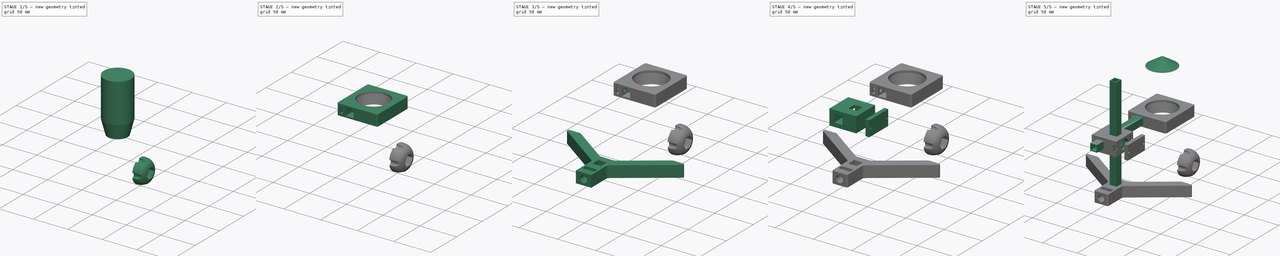
[diagram: build sequence overview — one tinted view per stage of 5, left to right]
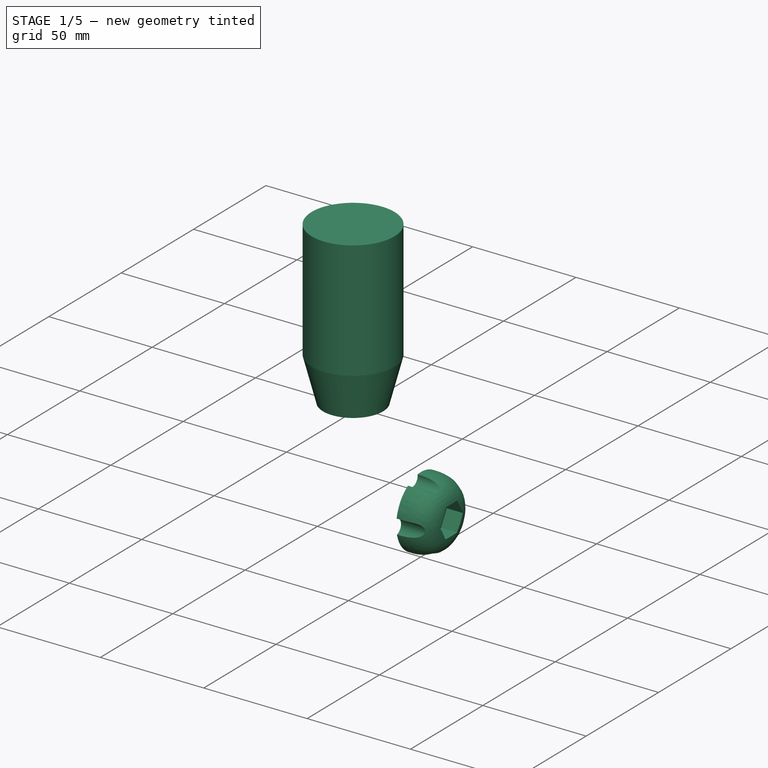
[diagram: stage 1 of 5 — iso view after this stage's code; geometry added in this stage tinted green]
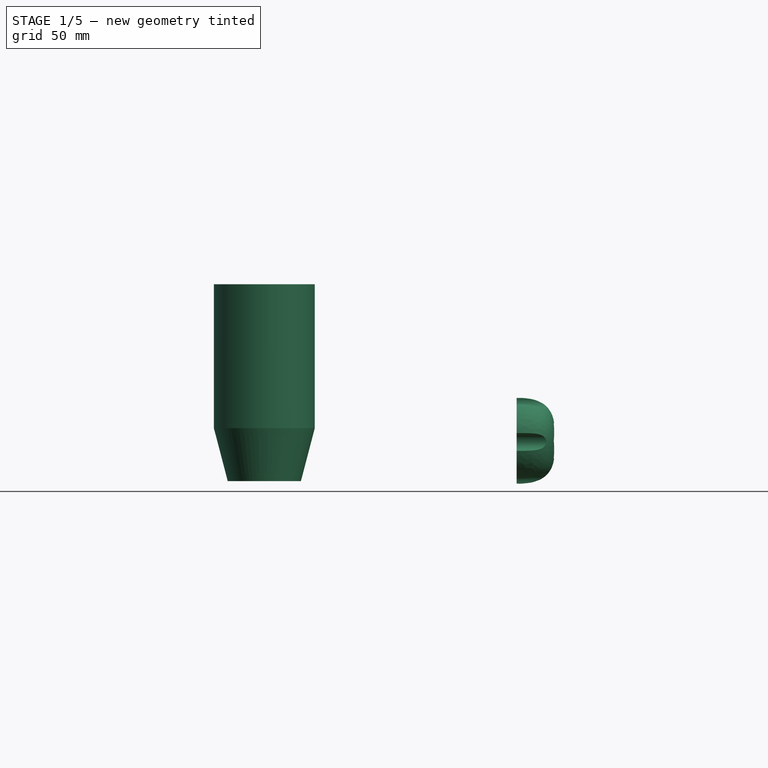
[diagram: stage 1 of 5 — front view after this stage's code; geometry added in this stage tinted green]
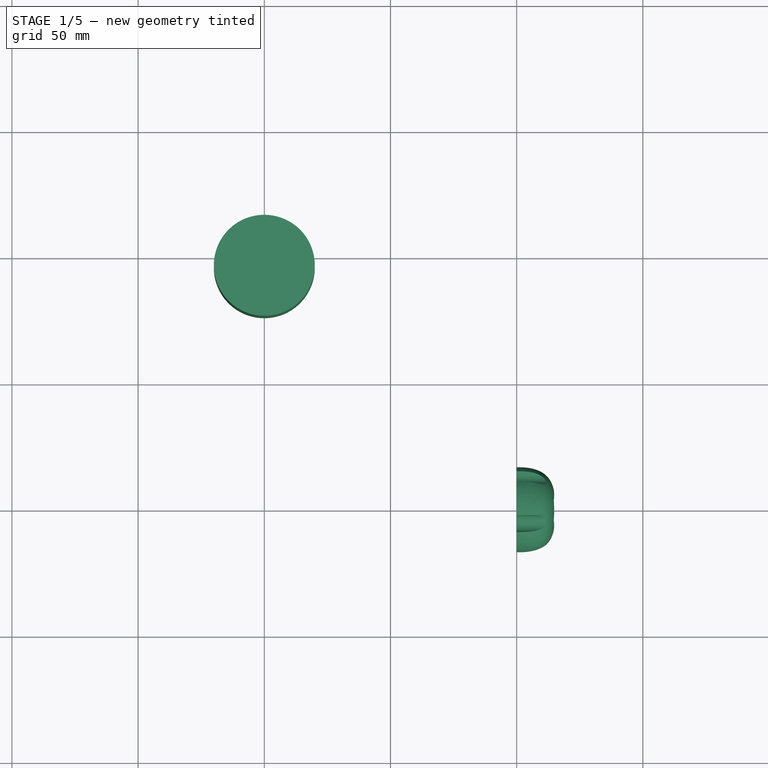
[diagram: stage 1 of 5 — top view after this stage's code; geometry added in this stage tinted green]
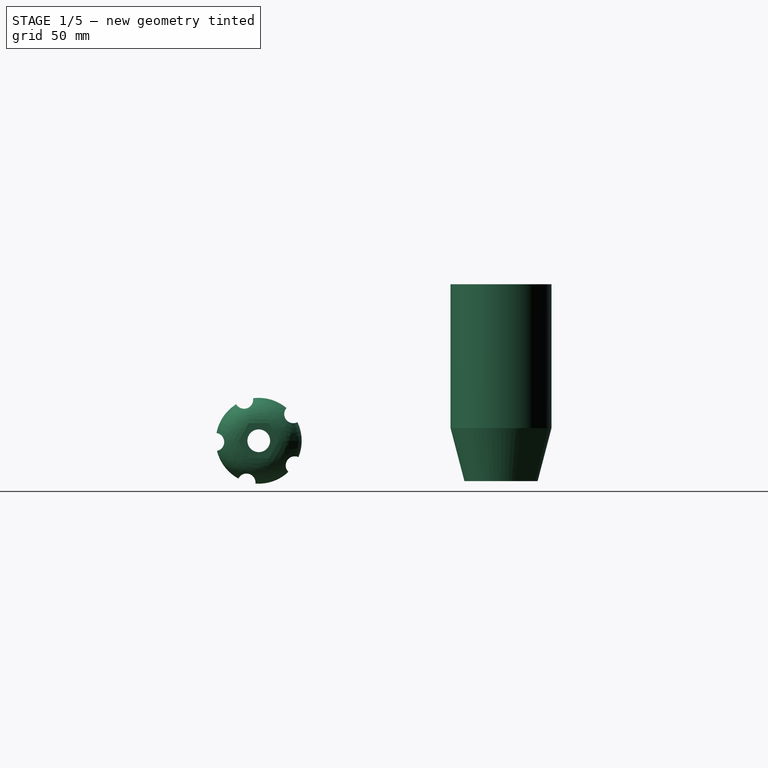
[diagram: stage 1 of 5 — right view after this stage's code; geometry added in this stage tinted green]
FCSTD DOCUMENT  (FreeCAD 0.14R3691 (Git))
Label: Soporte_Micro
License: CC-BY 3.0
LicenseURL: http://creativecommons.org/licenses/by/3.0/
objects: Sketcher::SketchObject×32, PartDesign::Pocket×16, PartDesign::Pad×7, App::DocumentObjectGroup×6, Part::Loft×5, PartDesign::Fillet×5, Part::Cut×2, Part::MultiFuse×1, Part::Offset×1, Part::Fillet×1, Part::FeaturePython×1
note: 94 computed .brp shape members not serialized (recipe doc carries the construction recipe); baked Part::Feature solids carry a one-line shape summary decoded from their .brp

FEATURE [Sketcher::SketchObject] Sketch  label="Campana_Inferior"
  sketch-geometry (1):
    g0: Circle CenterX=0 CenterY=0 CenterZ=0 NormalX=0 NormalY=0 NormalZ=1 Radius=11.5
  constraints (2):
    c: Radius(g0) = 11.5
    c: Coincident(g0,g-1)
FEATURE [Sketcher::SketchObject] Sketch001  label="Campana_Superior"
  Placement = pos=(0,0,19) rot=(0,0,1;0rad)
  sketch-geometry (1):
    g0: Circle CenterX=0 CenterY=0 CenterZ=0 NormalX=0 NormalY=0 NormalZ=1 Radius=14.5
  constraints (2):
    c: Radius(g0) = 14.5
    c: Coincident(g0,g-1)
FEATURE [Part::Loft] Loft  label="Campana_Camara"
  Closed = false
  Placement = pos=(0,96,-25) rot=(0,0,1;0rad)
  Ruled = false
  Sections = -> [Sketch,Sketch001]
  Solid = false
FEATURE [Sketcher::SketchObject] Sketch002  label="Cuerpo inferior"
  Placement = pos=(0,0,19) rot=(0,0,1;0rad)
  sketch-geometry (1):
    g0: Circle CenterX=0 CenterY=0 CenterZ=0 NormalX=0 NormalY=0 NormalZ=1 Radius=14.5
  constraints (2):
    c: Radius(g0) = 14.5
    c: Coincident(g0,g-1)
FEATURE [Sketcher::SketchObject] Sketch003  label="Cuerpo_Medio_001"
  Placement = pos=(0,0,40) rot=(0,0,1;0rad)
  sketch-geometry (1):
    g0: Circle CenterX=0 CenterY=0 CenterZ=0 NormalX=0 NormalY=0 NormalZ=1 Radius=20
  constraints (2):
    c: Radius(g0) = 20
    c: Coincident(g0,g-1)
FEATURE [Sketcher::SketchObject] Sketch004  label="Cuerpo_Medio_002"
  Placement = pos=(0,0,97) rot=(0,0,1;0rad)
  sketch-geometry (1):
    g0: Circle CenterX=0 CenterY=0 CenterZ=0 NormalX=0 NormalY=0 NormalZ=1 Radius=20
  constraints (2):
    c: Radius(g0) = 20
    c: Coincident(g0,g-1)
FEATURE [Sketcher::SketchObject] Sketch005  label="Cuerpo_Final"
  Placement = pos=(0,0,108) rot=(0,0,1;0rad)
  sketch-geometry (1):
    g0: Circle CenterX=0 CenterY=0 CenterZ=0 NormalX=0 NormalY=0 NormalZ=1 Radius=3
  constraints (2):
    c: Radius(g0) = 3
    c: Coincident(g0,g-1)
FEATURE [Part::Loft] Loft001
  Closed = false
  Placement = pos=(0,96,-25) rot=(0,0,1;0rad)
  Ruled = false
  Sections = -> [Sketch002,Sketch003]
  Solid = true
FEATURE [Part::Loft] Loft002
  Closed = false
  Placement = pos=(0,96,-25) rot=(0,0,1;0rad)
  Ruled = true
  Sections = -> [Sketch003,Sketch004]
  Solid = true
FEATURE [App::DocumentObjectGroup] Grupo005  label="Clip_camara"
  Group = -> [Pad005,Fillet005,Pocket012,Pocket013,Pocket014]
FEATURE [Sketcher::SketchObject] Sketch017011  label="Base_Inferior_Pomo"
  Placement = pos=(100,0,0) rot=(0.57735,0.57735,0.57735;2.0944rad)
  sketch-geometry (1):
    g0: Circle CenterX=0 CenterY=10 CenterZ=0 NormalX=0 NormalY=0 NormalZ=1 Radius=17
  constraints (3):
    c: PointOnObject(g0,g-2)
    c: DistanceY(g-1,g0) = 10
    c: Radius(g0) = 17
FEATURE [Sketcher::SketchObject] Sketch017012  label="Base_Intermedia_Pomo"
  Placement = pos=(110,0,0) rot=(0.57735,0.57735,0.57735;2.0944rad)
  sketch-geometry (1):
    g0: Circle CenterX=0 CenterY=10 CenterZ=0 NormalX=0 NormalY=0 NormalZ=1 Radius=15
  constraints (3):
    c: PointOnObject(g0,g-2)
    c: DistanceY(g-1,g0) = 10
    c: Radius(g0) = 15
FEATURE [Sketcher::SketchObject] Sketch017013  label="Base_superior_Pomo"
  Placement = pos=(115,0,0) rot=(0.57735,0.57735,0.57735;2.0944rad)
  sketch-geometry (1):
    g0: Circle CenterX=0 CenterY=10 CenterZ=0 NormalX=0 NormalY=0 NormalZ=1 Radius=5
  constraints (3):
    c: PointOnObject(g0,g-2)
    c: DistanceY(g-1,g0) = 10
    c: Radius(g0) = 5
FEATURE [Part::Loft] Loft004
  Closed = false
  Ruled = false
  Sections = -> [Sketch017011,Sketch017012,Sketch017013]
  Solid = true
FEATURE [Sketcher::SketchObject] Sketch017014
  Placement = pos=(95,0,0) rot=(0.57735,0.57735,0.57735;2.0944rad)
  sketch-geometry (1):
    g0: Circle CenterX=-17.2847 CenterY=9.50247 CenterZ=0 NormalX=0 NormalY=0 NormalZ=1 Radius=3.5932
FEATURE [PartDesign::Pad] Pad006
  Length = 40
  Length2 = 600
  Placement = pos=(95,0,0) rot=(0.57735,0.57735,0.57735;2.0944rad)
  Sketch = -> Sketch017014
  Type = 0
FEATURE [Part::FeaturePython] Array  # Draft array (typed FeaturePython)
  Angle = 360
  ArrayType = 1
  Axis = (1,0,0)
  Base = -> Pad006
  Center = (0,0,10)
  IntervalX = (1,0,0)
  IntervalY = (0,1,0)
  IntervalZ = (0,0,1)
  NumberPolar = 5
  NumberX = 1
  NumberY = 1
  NumberZ = 7
FEATURE [Part::Cut] Cut001
  Base = -> Loft004
  Tool = -> Array
FEATURE [Sketcher::SketchObject] Sketch017015
  Placement = pos=(115,0,0) rot=(0.57735,0.57735,0.57735;2.0944rad)
  Support = -> Cut001 [Face2]
  sketch-geometry (6):
    g0: LineSegment StartX=-4.02495 StartY=17 StartZ=0 EndX=4.02495 EndY=17 EndZ=0
    g1: LineSegment StartX=4.02495 StartY=17 StartZ=0 EndX=8 EndY=10 EndZ=0
    g2: LineSegment StartX=8 StartY=10 StartZ=0 EndX=4.02495 EndY=3 EndZ=0
    g3: LineSegment StartX=4.02495 StartY=3 StartZ=0 EndX=-4.02495 EndY=3 EndZ=0
    g4: LineSegment StartX=-4.02495 StartY=3 StartZ=0 EndX=-8 EndY=10 EndZ=0
    g5: LineSegment StartX=-8 StartY=10 StartZ=0 EndX=-4.02495 EndY=17 EndZ=0
  constraints (17):
    c: Coincident(g0,g1)
    c: Coincident(g1,g2)
    c: Coincident(g2,g3)
    c: Coincident(g3,g4)
    c: Coincident(g4,g5)
    c: Coincident(g5,g0)
    c: Equal(g0,g5)
    c: Equal(g5,g4)
    c: Equal(g4,g3)
    c: Equal(g3,g2)
    c: Equal(g2,g1)
    c: DistanceY(g0,g3) = -14
    c: Symmetric(g4,g1,g-2)
    c: Horizontal(g3)
    c: Horizontal(g0)
    c: DistanceY(g-1,g2) = 3
    c: DistanceX(g4,g1) = 16
FEATURE [PartDesign::Pocket] Pocket015
  Length = 8
  Sketch = -> Sketch017015
  Type = 0
FEATURE [Sketcher::SketchObject] Sketch017016
  Placement = pos=(107,0,0) rot=(0.57735,0.57735,0.57735;2.0944rad)
  Support = -> Pocket015 [Face19]
  sketch-geometry (1):
    g0: Circle CenterX=0 CenterY=10 CenterZ=0 NormalX=0 NormalY=0 NormalZ=1 Radius=4.5
  constraints (3):
    c: PointOnObject(g0,g-2)
    c: DistanceY(g-1,g0) = 10
    c: Radius(g0) = 4.5
FEATURE [PartDesign::Pocket] Pocket016
  Length = 8
  Sketch = -> Sketch017016
  Type = 0
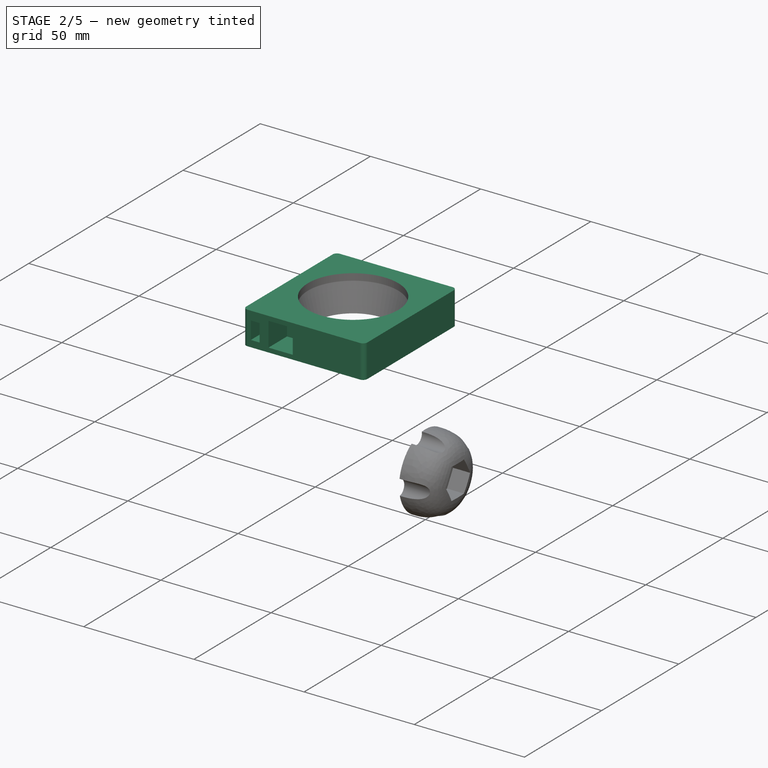
[diagram: stage 2 of 5 — iso view after this stage's code; geometry added in this stage tinted green]
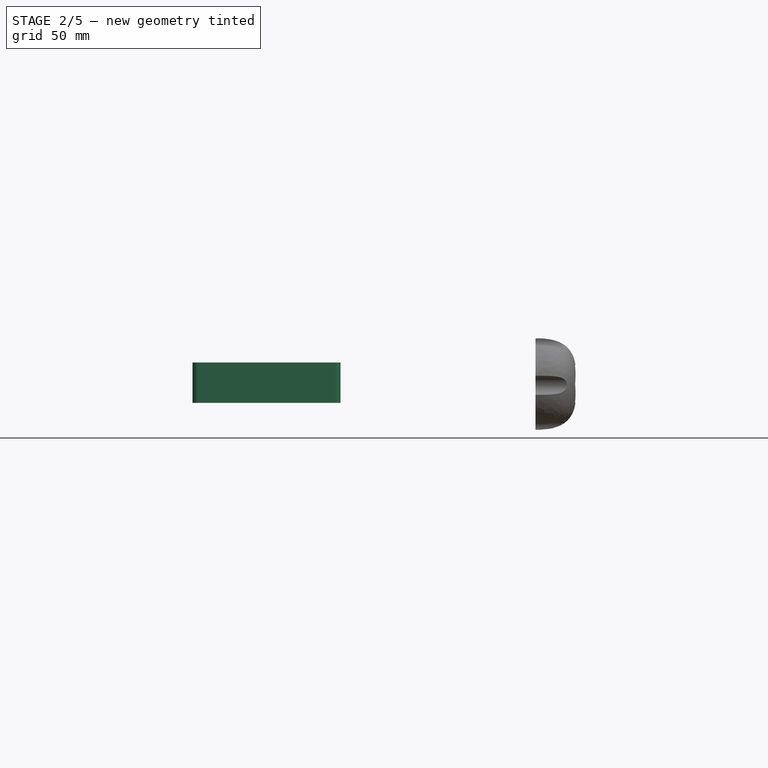
[diagram: stage 2 of 5 — front view after this stage's code; geometry added in this stage tinted green]
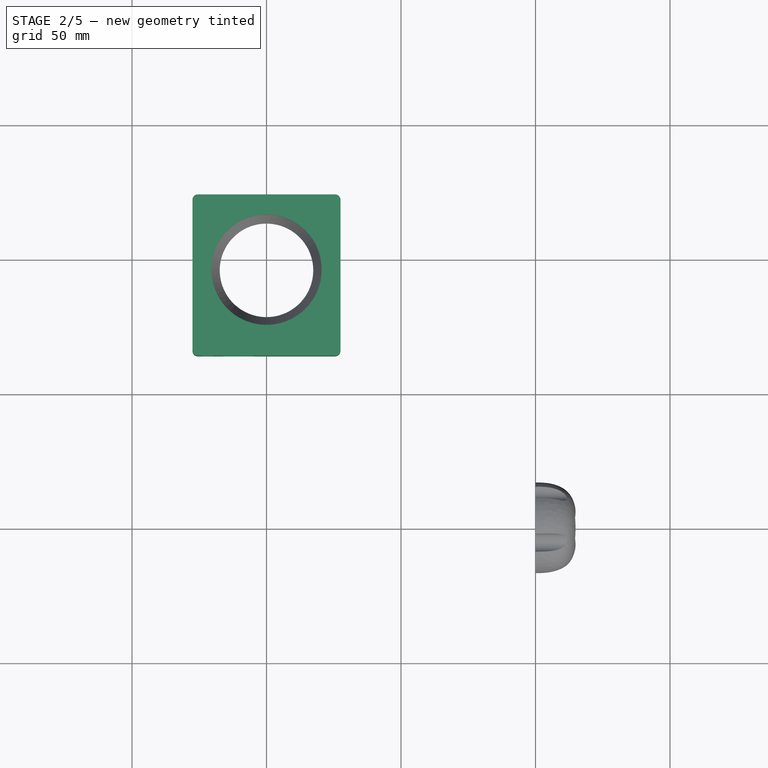
[diagram: stage 2 of 5 — top view after this stage's code; geometry added in this stage tinted green]
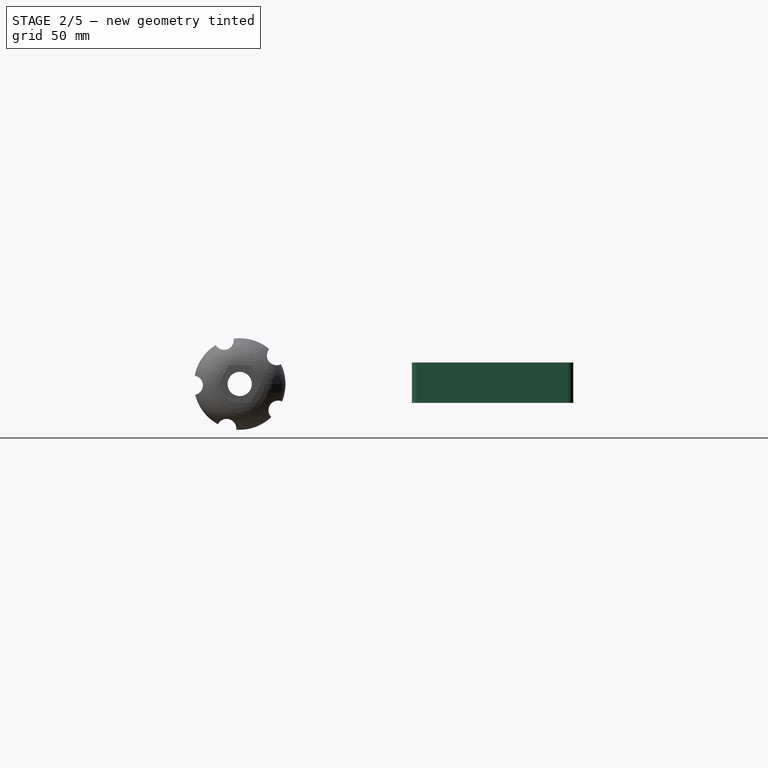
[diagram: stage 2 of 5 — right view after this stage's code; geometry added in this stage tinted green]
FEATURE [App::DocumentObjectGroup] Grupo004  label="Base"
  Group = -> [Pad004,Fillet,Pocket010,Pocket011,Fillet001,Fillet002,Fillet003,Fillet004]
FEATURE [Sketcher::SketchObject] Sketch017007
  Placement = pos=(0,0,3) rot=(0,0,1;0rad)
  sketch-geometry (4):
    g0: LineSegment StartX=-27.5 StartY=124 StartZ=0 EndX=-27.5 EndY=64 EndZ=0
    g1: LineSegment StartX=-27.5 StartY=64 StartZ=0 EndX=27.5 EndY=64 EndZ=0
    g2: LineSegment StartX=27.5 StartY=64 StartZ=0 EndX=27.5 EndY=124 EndZ=0
    g3: LineSegment StartX=27.5 StartY=124 StartZ=0 EndX=-27.5 EndY=124 EndZ=0
  constraints (12):
    c: Coincident(g0,g1)
    c: Coincident(g1,g2)
    c: Coincident(g2,g3)
    c: Coincident(g3,g0)
    c: Horizontal(g3)
    c: Vertical(g2)
    c: Equal(g3,g1)
    c: Equal(g2,g0)
    c: DistanceY(g0) = -60
    c: Symmetric(g0,g2,g-2)
    c: DistanceX(g1) = 55
    c: DistanceY(g-1,g0) = 64
FEATURE [PartDesign::Pad] Pad005  label="Cubo_camara"
  Length = 15
  Length2 = 600
  Placement = pos=(0,0,3) rot=(0,0,1;0rad)
  Sketch = -> Sketch017007
  Type = 0
FEATURE [Part::MultiFuse] Fusion
  Shapes = -> [Loft002,Loft001]
FEATURE [App::DocumentObjectGroup] Grupo  label="Microscopio"
  Group = -> [Loft,Loft001,Loft002,Loft003,Fusion]
FEATURE [Part::Offset] Offset
  Fill = false
  Intersection = false
  Join = 0
  Mode = 0
  SelfIntersection = false
  Source = -> Fusion
  Value = 0.5
FEATURE [Part::Cut] Cut
  Base = -> Pad005
  Tool = -> Offset
FEATURE [Part::Fillet] Fillet005
  Base = -> Cut
  Edges = 4 edges r=2: [Edge1,Edge2,Edge5,Edge8]
FEATURE [Sketcher::SketchObject] Sketch017008
  Placement = pos=(0,64,0) rot=(1,0,0;1.5708rad)
  Support = -> Fillet005 [Face7]
  sketch-geometry (4):
    g0: LineSegment StartX=-16 StartY=16 StartZ=0 EndX=-5 EndY=16 EndZ=0
    g1: LineSegment StartX=-5 StartY=16 StartZ=0 EndX=-5 EndY=5 EndZ=0
    g2: LineSegment StartX=-5 StartY=5 StartZ=0 EndX=-16 EndY=5 EndZ=0
    g3: LineSegment StartX=-16 StartY=5 StartZ=0 EndX=-16 EndY=16 EndZ=0
  constraints (14):
    c: Coincident(g0,g1)
    c: Coincident(g1,g2)
    c: Coincident(g2,g3)
    c: Coincident(g3,g0)
    c: Horizontal(g0)
    c: Horizontal(g2)
    c: Vertical(g1)
    c: Vertical(g3)
    c: Equal(g0,g3)
    c: Equal(g3,g1)
    c: Equal(g1,g2)
    c: DistanceX(g0) = 11
    c: DistanceY(g-1,g1) = 5
    c: DistanceX(g-1,g1) = -5
FEATURE [PartDesign::Pocket] Pocket012
  Length = 12
  Sketch = -> Sketch017008
  Type = 0
FEATURE [Sketcher::SketchObject] Sketch017009
  Placement = pos=(0,64,0) rot=(1,0,0;1.5708rad)
  Support = -> Pocket012 [Face7]
  sketch-geometry (4):
    g0: LineSegment StartX=-24 StartY=14 StartZ=0 EndX=-20 EndY=14 EndZ=0
    g1: LineSegment StartX=-20 StartY=14 StartZ=0 EndX=-20 EndY=6 EndZ=0
    g2: LineSegment StartX=-20 StartY=6 StartZ=0 EndX=-24 EndY=6 EndZ=0
    g3: LineSegment StartX=-24 StartY=6 StartZ=0 EndX=-24 EndY=14 EndZ=0
  constraints (14):
    c: Coincident(g0,g1)
    c: Coincident(g1,g2)
    c: Coincident(g2,g3)
    c: Coincident(g3,g0)
    c: Horizontal(g0)
    c: Horizontal(g2)
    c: Vertical(g1)
    c: Vertical(g3)
    c: Equal(g3,g1)
    c: DistanceY(g3) = 8
    c: Equal(g2,g0)
    c: DistanceX(g0) = 4
    c: DistanceX(g-1,g0) = -20
    c: DistanceY(g-1,g1) = 6
FEATURE [PartDesign::Pocket] Pocket013
  Length = 13
  Sketch = -> Sketch017009
  Type = 0
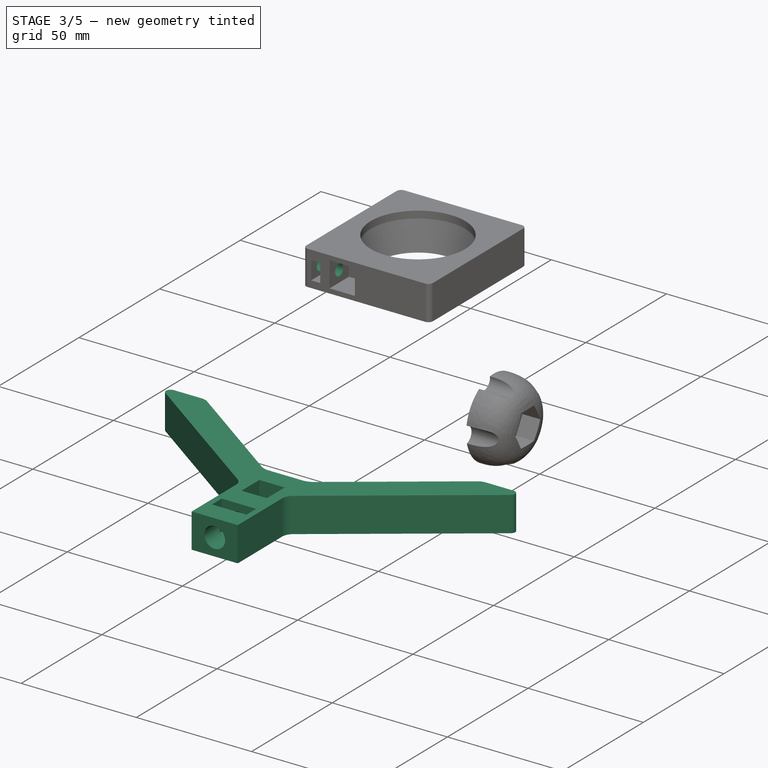
[diagram: stage 3 of 5 — iso view after this stage's code; geometry added in this stage tinted green]
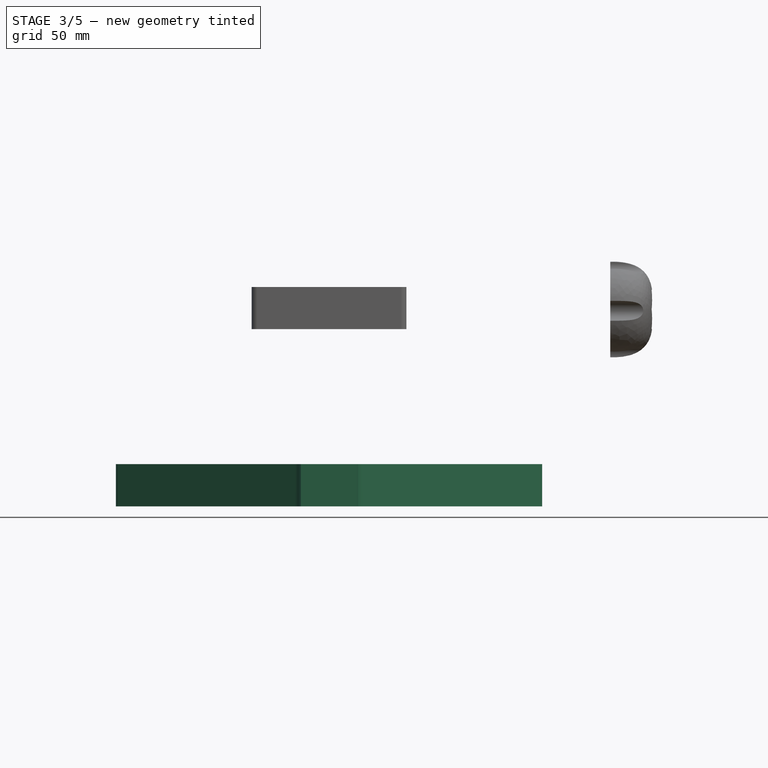
[diagram: stage 3 of 5 — front view after this stage's code; geometry added in this stage tinted green]
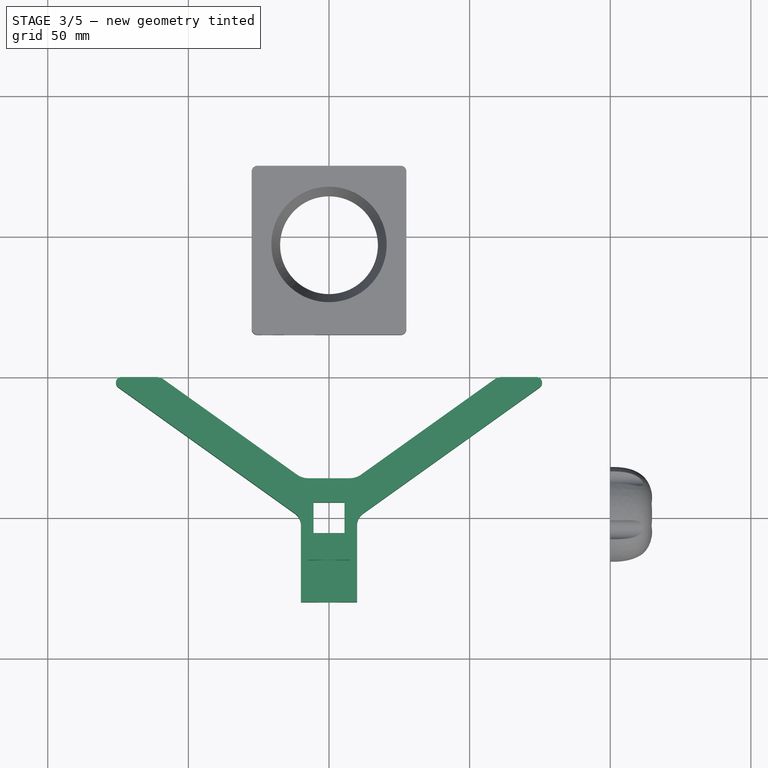
[diagram: stage 3 of 5 — top view after this stage's code; geometry added in this stage tinted green]
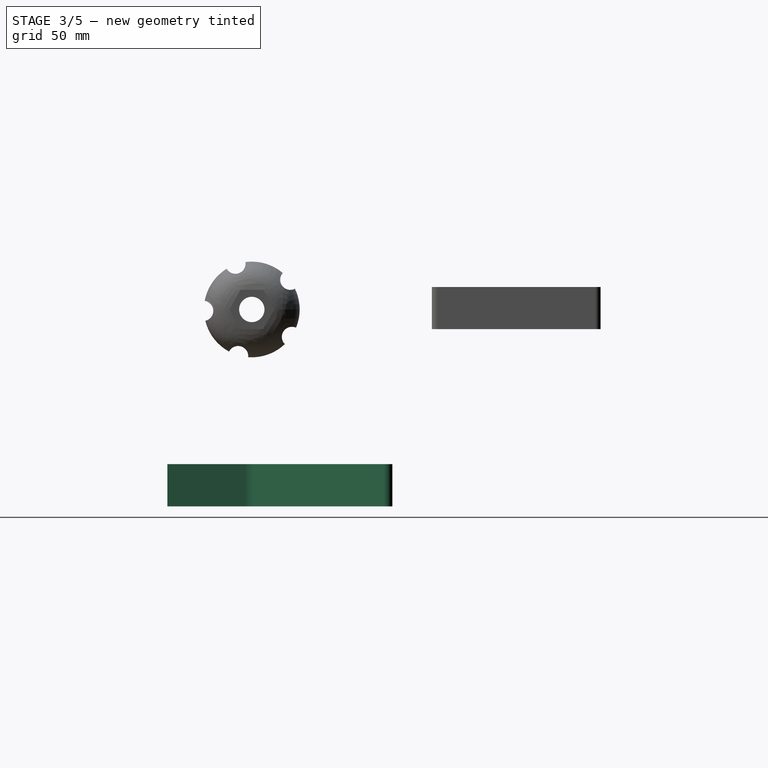
[diagram: stage 3 of 5 — right view after this stage's code; geometry added in this stage tinted green]
FEATURE [App::DocumentObjectGroup] Grupo002  label="Cruceta"
  Group = -> [Pad001,Pocket,Pocket001,Pocket002,Pocket003,Pocket004,Pocket006]
FEATURE [Sketcher::SketchObject] Sketch017001
  Placement = pos=(0,0,-60) rot=(0,0,1;0rad)
  sketch-geometry (14):
    g0: LineSegment StartX=10 StartY=0 StartZ=0 EndX=80 EndY=50 EndZ=0
    g1: LineSegment StartX=80 StartY=50 StartZ=0 EndX=60 EndY=50 EndZ=0
    g2: LineSegment StartX=60 StartY=50 StartZ=0 EndX=9.6 EndY=14 EndZ=0
    g3: LineSegment StartX=9.6 StartY=14 StartZ=0 EndX=-9.6 EndY=14 EndZ=0
    g4: LineSegment StartX=-9.6 StartY=14 StartZ=0 EndX=-60 EndY=50 EndZ=0
    g5: LineSegment StartX=-60 StartY=50 StartZ=0 EndX=-80 EndY=50 EndZ=0
    g6: LineSegment StartX=-80 StartY=50 StartZ=0 EndX=-10 EndY=0 EndZ=0
    g7: LineSegment StartX=-10 StartY=0 StartZ=0 EndX=-10 EndY=-30 EndZ=0
    g8: LineSegment StartX=-10 StartY=-30 StartZ=0 EndX=10 EndY=-30 EndZ=0
    g9: LineSegment StartX=10 StartY=-30 StartZ=0 EndX=10 EndY=0 EndZ=0
    g10: LineSegment StartX=-5.5 StartY=-5.5 StartZ=0 EndX=5.5 EndY=-5.5 EndZ=0
    g11: LineSegment StartX=5.5 StartY=-5.5 StartZ=0 EndX=5.5 EndY=5.5 EndZ=0
    g12: LineSegment StartX=5.5 StartY=5.5 StartZ=0 EndX=-5.5 EndY=5.5 EndZ=0
    g13: LineSegment StartX=-5.5 StartY=5.5 StartZ=0 EndX=-5.5 EndY=-5.5 EndZ=0
  constraints (42):
    c: Coincident(g0,g1)
    c: Horizontal(g1)
    c: Coincident(g1,g2)
    c: Coincident(g2,g3)
    c: Horizontal(g3)
    c: Coincident(g3,g4)
    c: Coincident(g4,g5)
    c: Horizontal(g5)
    c: Coincident(g5,g6)
    c: Coincident(g7,g6)
    c: Vertical(g7)
    c: Coincident(g7,g8)
    c: Horizontal(g8)
    c: Coincident(g8,g9)
    c: Coincident(g9,g0)
    c: Vertical(g9)
    c: Symmetric(g6,g0,g-2)
    c: DistanceX(g8) = 20
    c: Equal(g8,g1)
    c: Equal(g1,g5)
    c: Parallel(g4,g6)
    c: Parallel(g2,g0)
    c: DistanceY(g-1,g5) = 50
    c: DistanceY(g-1,g0) = 50
    c: PointOnObject(g0,g-1)
    c: Symmetric(g4,g1,g-2)
    c: DistanceX(g4,g1) = 120
    c: DistanceY(g-1,g2) = 14
    c: DistanceY(g0,g8) = -30
    c: Coincident(g10,g11)
    c: Coincident(g11,g12)
    c: Coincident(g12,g13)
    c: Coincident(g13,g10)
    c: Horizontal(g10)
    c: Horizontal(g12)
    c: Vertical(g11)
    c: Vertical(g13)
    c: Symmetric(g11,g10,g-1)
    c: Equal(g11,g10)
    c: Equal(g10,g13)
    c: Equal(g13,g12)
    c: DistanceX(g10) = 11
FEATURE [PartDesign::Pad] Pad004
  Length = 15
  Length2 = 100
  Placement = pos=(0,0,-60) rot=(0,0,1;0rad)
  Sketch = -> Sketch017001
  Type = 0
FEATURE [Sketcher::SketchObject] Sketch017004
  Placement = pos=(30,0,0) rot=(0.57735,0.57735,0.57735;2.0944rad)
  Support = -> Pocket008 [Face5]
  sketch-geometry (1):
    g0: Circle CenterX=0 CenterY=10 CenterZ=0 NormalX=0 NormalY=0 NormalZ=1 Radius=4.5
  constraints (3):
    c: PointOnObject(g0,g-2)
    c: DistanceY(g-1,g0) = 10
    c: Radius(g0) = 4.5
FEATURE [PartDesign::Fillet] Fillet
  Base = -> Pad004 [Edge11,Edge8]
  Placement = pos=(0,0,-60) rot=(0,0,1;0rad)
  Radius = 7
FEATURE [App::DocumentObjectGroup] Grupo003  label="Tapa_Cruceta"
  Group = -> [Pocket005,Pad003,Pocket008,Pocket009]
FEATURE [Sketcher::SketchObject] Sketch017005
  Placement = pos=(0,-30,-60) rot=(1,0,0;1.5708rad)
  Support = -> Fillet [Face11]
  sketch-geometry (1):
    g0: Circle CenterX=0 CenterY=7.5 CenterZ=0 NormalX=0 NormalY=0 NormalZ=1 Radius=4.5
  constraints (3):
    c: PointOnObject(g0,g-2)
    c: Radius(g0) = 4.5
    c: DistanceY(g-1,g0) = 7.5
FEATURE [PartDesign::Pocket] Pocket010  label="Taladro_8"
  Length = 25
  Placement = pos=(0,0,-60) rot=(0,0,1;0rad)
  Sketch = -> Sketch017005
  Type = 0
FEATURE [Sketcher::SketchObject] Sketch017006
  Placement = pos=(0,0,-45) rot=(0,0,1;0rad)
  Support = -> Pocket010 [Face5]
  sketch-geometry (4):
    g0: LineSegment StartX=-7.5 StartY=-15 StartZ=0 EndX=7.5 EndY=-15 EndZ=0
    g1: LineSegment StartX=7.5 StartY=-15 StartZ=0 EndX=7.5 EndY=-21 EndZ=0
    g2: LineSegment StartX=7.5 StartY=-21 StartZ=0 EndX=-7.5 EndY=-21 EndZ=0
    g3: LineSegment StartX=-7.5 StartY=-21 StartZ=0 EndX=-7.5 EndY=-15 EndZ=0
  constraints (12):
    c: Coincident(g0,g1)
    c: Coincident(g1,g2)
    c: Coincident(g2,g3)
    c: Coincident(g3,g0)
    c: Horizontal(g0)
    c: Horizontal(g2)
    c: Vertical(g1)
    c: Vertical(g3)
    c: Symmetric(g0,g0,g-2)
    c: DistanceX(g0) = 15
    c: DistanceY(g1) = -6
    c: DistanceY(g-1,g0) = -15
FEATURE [PartDesign::Pocket] Pocket011  label="Tuerca_empotrada"
  Length = 13
  Placement = pos=(0,0,-60) rot=(0,0,1;0rad)
  Sketch = -> Sketch017006
  Type = 0
FEATURE [PartDesign::Fillet] Fillet001
  Base = -> Pocket011 [Edge49,Edge42]
  Placement = pos=(0,0,-60) rot=(0,0,1;0rad)
  Radius = 5
FEATURE [PartDesign::Fillet] Fillet002
  Base = -> Fillet001 [Edge20,Edge43]
  Placement = pos=(0,0,-60) rot=(0,0,1;0rad)
  Radius = 2
FEATURE [PartDesign::Fillet] Fillet003
  Base = -> Fillet002 [Edge49,Edge28]
  Placement = pos=(0,0,-60) rot=(0,0,1;0rad)
  Radius = 5
FEATURE [Sketcher::SketchObject] Sketch017010
  Placement = pos=(-27.5,0,0) rot=(0.57735,-0.57735,-0.57735;2.0944rad)
  Support = -> Pocket013 [Face1]
  sketch-geometry (1):
    g0: Circle CenterX=-70 CenterY=10 CenterZ=0 NormalX=0 NormalY=0 NormalZ=1 Radius=2.5
  constraints (3):
    c: Radius(g0) = 2.5
    c: DistanceX(g-1,g0) = -70
    c: DistanceY(g-1,g0) = 10
FEATURE [PartDesign::Pocket] Pocket014  label="Base_cam_final"
  Length = 15
  Sketch = -> Sketch017010
  Type = 0
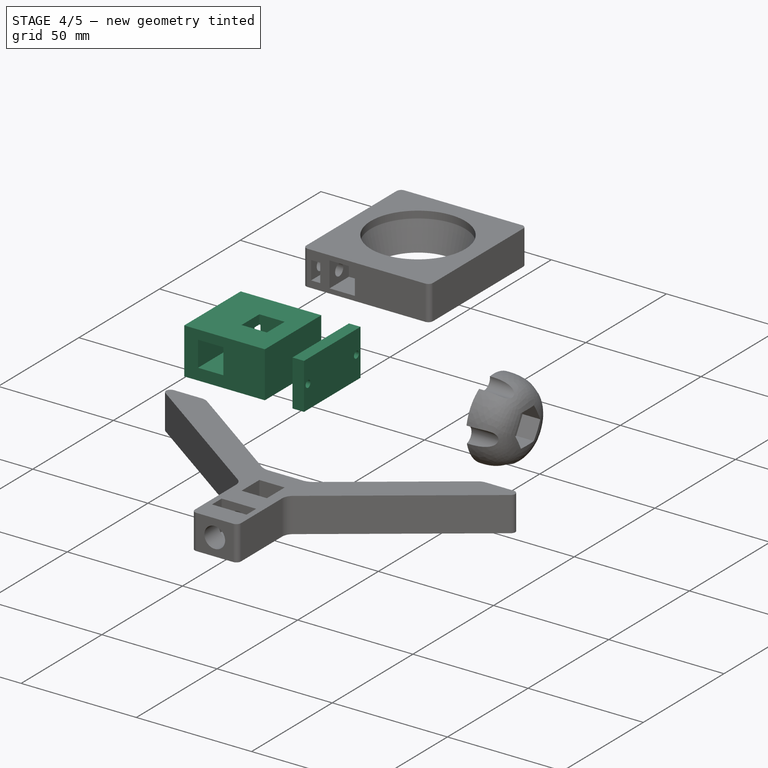
[diagram: stage 4 of 5 — iso view after this stage's code; geometry added in this stage tinted green]
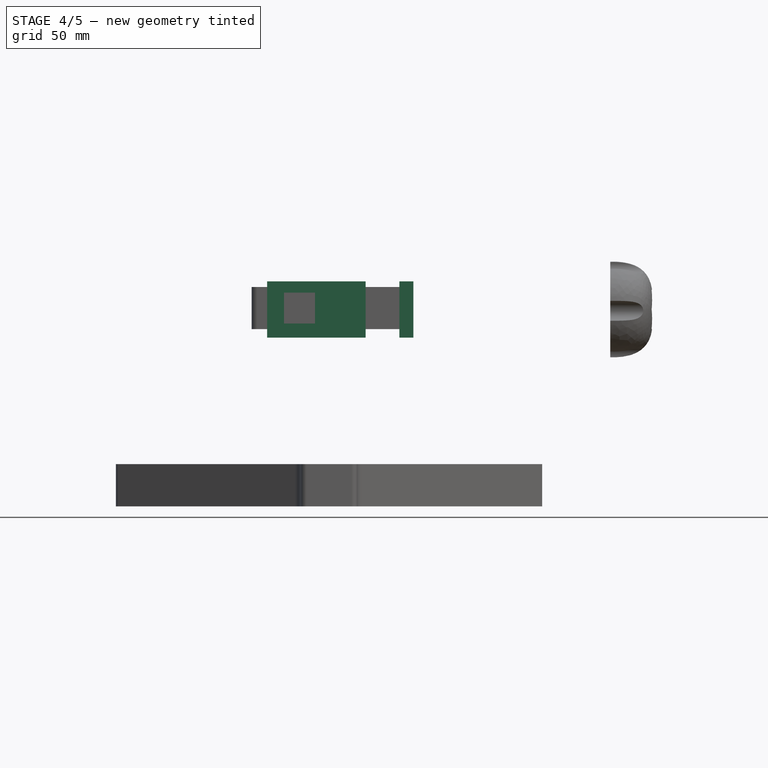
[diagram: stage 4 of 5 — front view after this stage's code; geometry added in this stage tinted green]
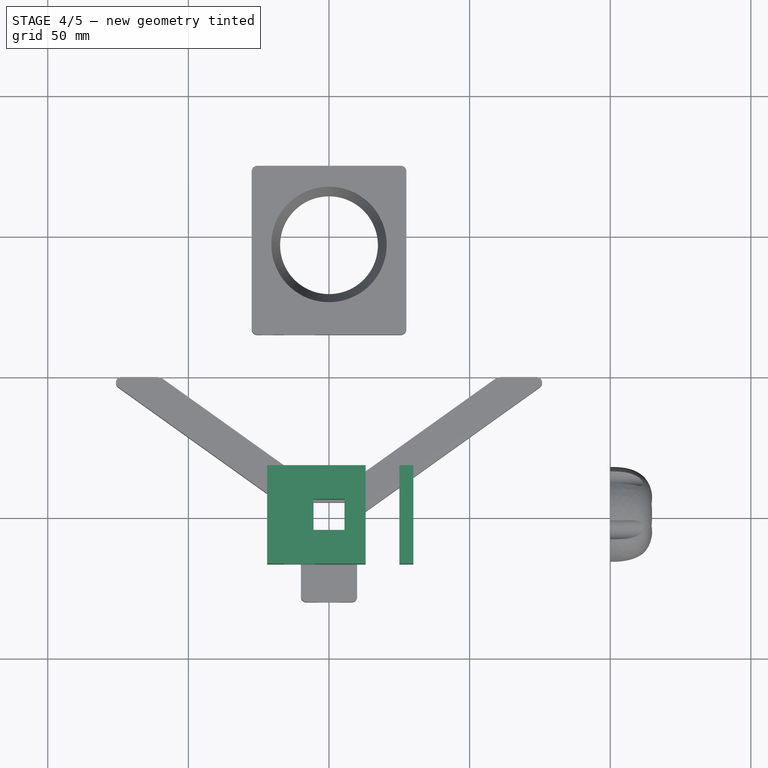
[diagram: stage 4 of 5 — top view after this stage's code; geometry added in this stage tinted green]
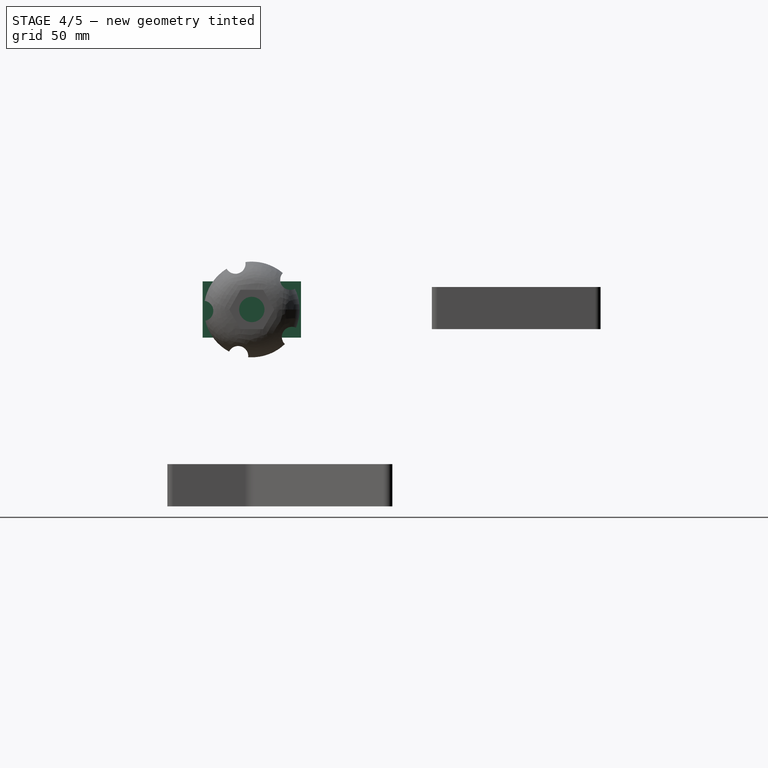
[diagram: stage 4 of 5 — right view after this stage's code; geometry added in this stage tinted green]
FEATURE [Sketcher::SketchObject] Sketch007
  sketch-geometry (8):
    g0: LineSegment StartX=-5.5 StartY=5.5 StartZ=0 EndX=5.5 EndY=5.5 EndZ=0
    g1: LineSegment StartX=5.5 StartY=5.5 StartZ=0 EndX=5.5 EndY=-5.5 EndZ=0
    g2: LineSegment StartX=5.5 StartY=-5.5 StartZ=0 EndX=-5.5 EndY=-5.5 EndZ=0
    g3: LineSegment StartX=-5.5 StartY=-5.5 StartZ=0 EndX=-5.5 EndY=5.5 EndZ=0
    g4: LineSegment StartX=-22 StartY=17.5 StartZ=0 EndX=13 EndY=17.5 EndZ=0
    g5: LineSegment StartX=13 StartY=17.5 StartZ=0 EndX=13 EndY=-17.5 EndZ=0
    g6: LineSegment StartX=13 StartY=-17.5 StartZ=0 EndX=-22 EndY=-17.5 EndZ=0
    g7: LineSegment StartX=-22 StartY=-17.5 StartZ=0 EndX=-22 EndY=17.5 EndZ=0
  constraints (25):
    c: Coincident(g0,g1)
    c: Coincident(g1,g2)
    c: Coincident(g2,g3)
    c: Coincident(g3,g0)
    c: Horizontal(g0)
    c: Horizontal(g2)
    c: Vertical(g1)
    c: Vertical(g3)
    c: Symmetric(g0,g1,g-1)
    c: Equal(g3,g2)
    c: DistanceX(g2) = -11
    c: Coincident(g4,g5)
    c: Coincident(g5,g6)
    c: Coincident(g6,g7)
    c: Coincident(g7,g4)
    c: Horizontal(g4)
    c: Horizontal(g6)
    c: Vertical(g5)
    c: Vertical(g7)
    c: Equal(g6,g7)
    c: Equal(g7,g4)
    c: Equal(g4,g5)
    c: Symmetric(g4,g5,g-1)
    c: DistanceX(g6) = -35
    c: DistanceX(g0,g4) = 7.5
FEATURE [PartDesign::Pad] Pad001  label="Cruceta_Altura"
  Length = 20
  Length2 = 100
  Sketch = -> Sketch007
  Type = 0
FEATURE [Sketcher::SketchObject] Sketch008
  Placement = pos=(0,17.5,0) rot=(0,0.707107,0.707107;3.14159rad)
  Support = -> Pad001 [Face1]
  sketch-geometry (4):
    g0: LineSegment StartX=5 StartY=16 StartZ=0 EndX=16 EndY=16 EndZ=0
    g1: LineSegment StartX=16 StartY=16 StartZ=0 EndX=16 EndY=5 EndZ=0
    g2: LineSegment StartX=16 StartY=5 StartZ=0 EndX=5 EndY=5 EndZ=0
    g3: LineSegment StartX=5 StartY=5 StartZ=0 EndX=5 EndY=16 EndZ=0
  constraints (14):
    c: Coincident(g0,g1)
    c: Coincident(g1,g2)
    c: Coincident(g2,g3)
    c: Coincident(g3,g0)
    c: Horizontal(g0)
    c: Horizontal(g2)
    c: Vertical(g1)
    c: Vertical(g3)
    c: Equal(g2,g3)
    c: Equal(g3,g0)
    c: Equal(g0,g1)
    c: DistanceX(g2) = -11
    c: DistanceX(g-1,g2) = 5
    c: DistanceY(g-1,g2) = 5
FEATURE [PartDesign::Pocket] Pocket  label="Cruceta vertical"
  Length = 35
  Sketch = -> Sketch008
  Type = 0
FEATURE [Sketcher::SketchObject] Sketch014
  Placement = pos=(25,0,0) rot=(0.57735,0.57735,0.57735;2.0944rad)
  sketch-geometry (6):
    g0: LineSegment StartX=-17.5 StartY=20 StartZ=0 EndX=17.5 EndY=20 EndZ=0
    g1: LineSegment StartX=17.5 StartY=20 StartZ=0 EndX=17.5 EndY=0 EndZ=0
    g2: LineSegment StartX=17.5 StartY=0 StartZ=0 EndX=-17.5 EndY=0 EndZ=0
    g3: LineSegment StartX=-17.5 StartY=0 StartZ=0 EndX=-17.5 EndY=20 EndZ=0
    g4: Circle CenterX=-15 CenterY=10 CenterZ=0 NormalX=0 NormalY=0 NormalZ=1 Radius=1.5
    g5: Circle CenterX=15 CenterY=10 CenterZ=0 NormalX=0 NormalY=0 NormalZ=1 Radius=1.5
  constraints (17):
    c: Coincident(g0,g1)
    c: Coincident(g1,g2)
    c: Coincident(g2,g3)
    c: Coincident(g3,g0)
    c: Horizontal(g0)
    c: Horizontal(g2)
    c: Vertical(g1)
    c: Vertical(g3)
    c: Symmetric(g2,g1,g-2)
    c: PointOnObject(g2,g-1)
    c: DistanceX(g2) = -35
    c: DistanceY(g3) = 20
    c: Symmetric(g4,g5,g-2)
    c: Equal(g4,g5)
    c: Radius(g5) = 1.5
    c: DistanceX(g-1,g4) = -15
    c: DistanceY(g4,g2) = -10
FEATURE [PartDesign::Pad] Pad003  label="Tapa_tuerca"
  Length = 5
  Length2 = 100
  Placement = pos=(25,0,0) rot=(0.57735,0.57735,0.57735;2.0944rad)
  Sketch = -> Sketch014
  Type = 0
FEATURE [Sketcher::SketchObject] Sketch015
  Placement = pos=(30,0,0) rot=(0.57735,0.57735,0.57735;2.0944rad)
  Support = -> Pad003 [Face8]
  sketch-geometry (2):
    g0: Circle CenterX=-15 CenterY=10 CenterZ=0 NormalX=0 NormalY=0 NormalZ=1 Radius=3
    g1: Circle CenterX=15 CenterY=10 CenterZ=0 NormalX=0 NormalY=0 NormalZ=1 Radius=3
  constraints (5):
    c: Symmetric(g1,g0,g-2)
    c: Equal(g0,g1)
    c: Radius(g0) = 3
    c: DistanceY(g-1,g0) = 10
    c: DistanceX(g-1,g0) = -15
FEATURE [PartDesign::Pocket] Pocket005  label="Tapa_Taladros_M5"
  Length = 2
  Placement = pos=(25,0,0) rot=(0.57735,0.57735,0.57735;2.0944rad)
  Sketch = -> Sketch015
  Type = 0
FEATURE [Sketcher::SketchObject] Sketch017003
  Placement = pos=(25,0,0) rot=(0.57735,0.57735,-0.57735;4.18879rad)
  Support = -> Pad003 [Face7]
  sketch-geometry (6):
    g0: LineSegment StartX=-4.025 StartY=-3.25 StartZ=0 EndX=4.025 EndY=-3.25 EndZ=0
    g1: LineSegment StartX=4.025 StartY=-3.25 StartZ=0 EndX=8.41134 EndY=-10 EndZ=0
    g2: LineSegment StartX=8.41134 StartY=-10 StartZ=0 EndX=4.025 EndY=-16.75 EndZ=0
    g3: LineSegment StartX=4.025 StartY=-16.75 StartZ=0 EndX=-4.025 EndY=-16.75 EndZ=0
    g4: LineSegment StartX=-4.025 StartY=-16.75 StartZ=0 EndX=-8.41134 EndY=-10 EndZ=0
    g5: LineSegment StartX=-8.41134 StartY=-10 StartZ=0 EndX=-4.025 EndY=-3.25 EndZ=0
  constraints (17):
    c: Coincident(g0,g1)
    c: Coincident(g1,g2)
    c: Coincident(g2,g3)
    c: Coincident(g3,g4)
    c: Coincident(g4,g5)
    c: Coincident(g5,g0)
    c: Symmetric(g0,g0,g-2)
    c: Symmetric(g3,g2,g-2)
    c: Symmetric(g4,g1,g-2)
    c: DistanceY(g0,g3) = -13.5
    c: DistanceX(g0) = 8.05
    c: Equal(g0,g5)
    c: Equal(g5,g4)
    c: Equal(g4,g3)
    c: Equal(g3,g2)
    c: Equal(g2,g1)
    c: DistanceY(g-1,g0) = -3.25
FEATURE [PartDesign::Pocket] Pocket008  label="Tuercca_tapa"
  Length = 2
  Placement = pos=(25,0,0) rot=(0.57735,0.57735,0.57735;2.0944rad)
  Sketch = -> Sketch017003
  Type = 0
FEATURE [PartDesign::Pocket] Pocket009  label="Tapa_Final"
  Length = 5
  Placement = pos=(25,0,0) rot=(0.57735,0.57735,0.57735;2.0944rad)
  Sketch = -> Sketch017004
  Type = 0
FEATURE [PartDesign::Fillet] Fillet004  label="Base Final"
  Base = -> Fillet003 [Edge44,Edge40]
  Placement = pos=(0,0,-60) rot=(0,0,1;0rad)
  Radius = 2
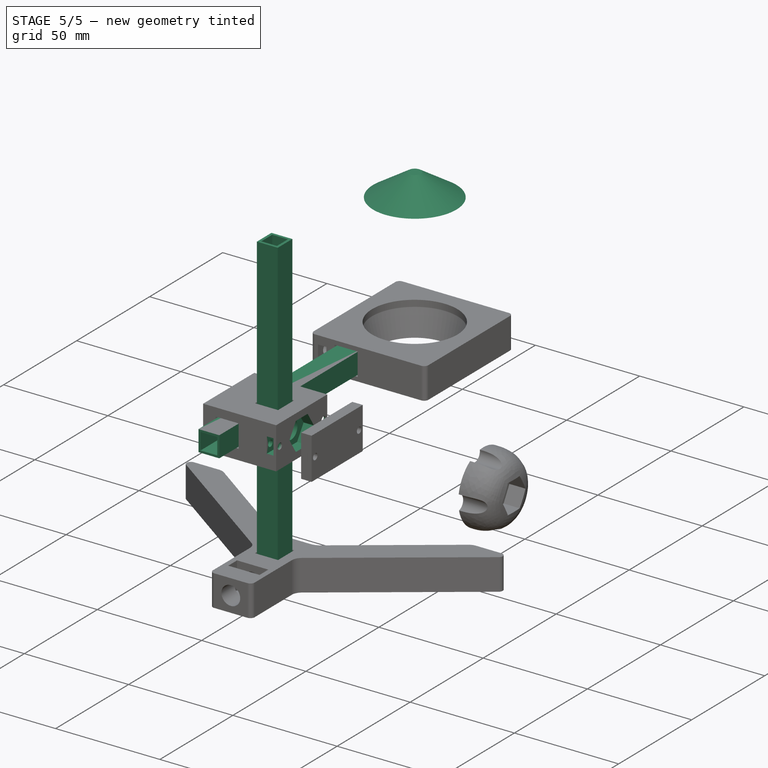
[diagram: stage 5 of 5 — iso view after this stage's code; geometry added in this stage tinted green]
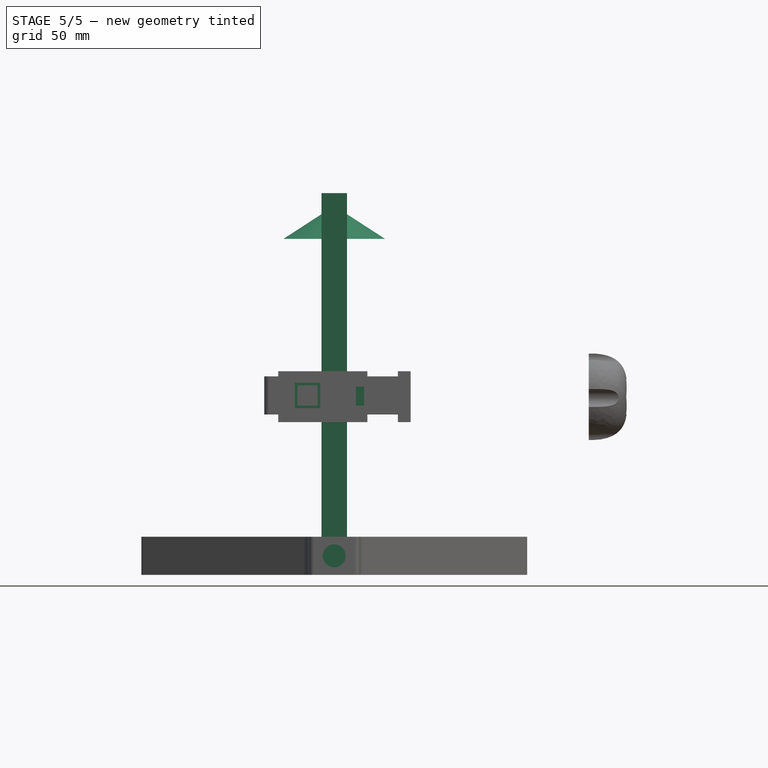
[diagram: stage 5 of 5 — front view after this stage's code; geometry added in this stage tinted green]
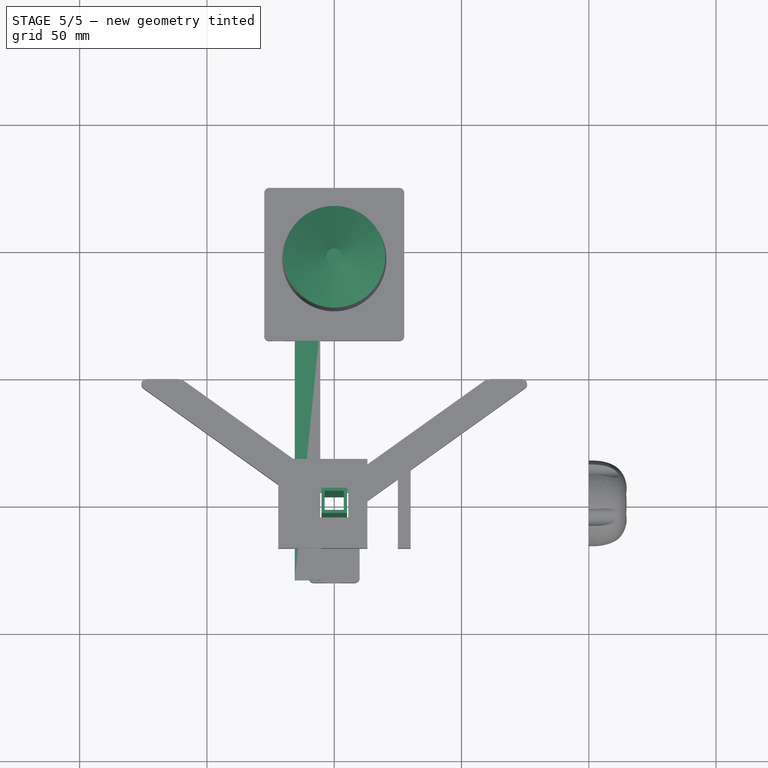
[diagram: stage 5 of 5 — top view after this stage's code; geometry added in this stage tinted green]
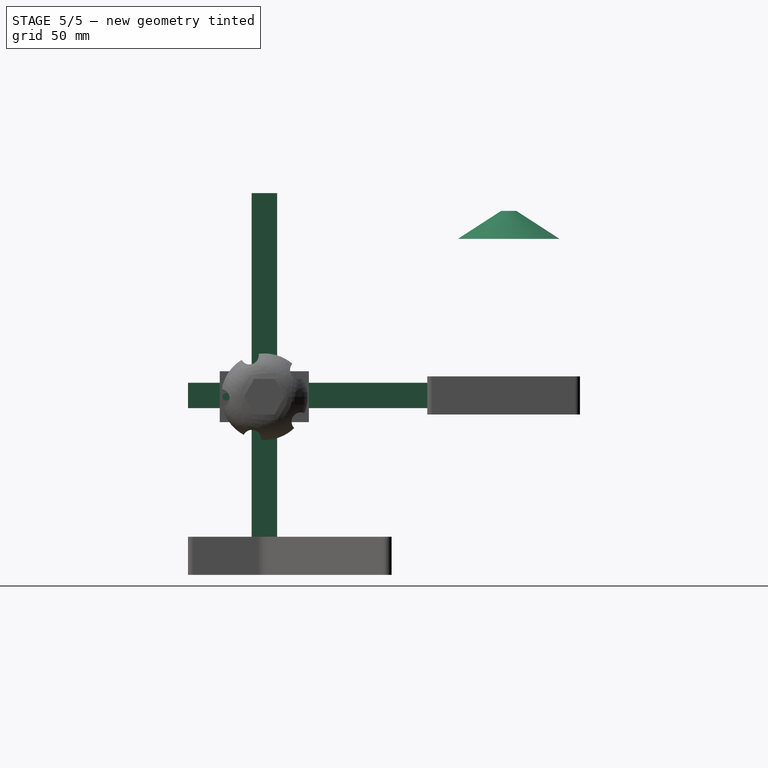
[diagram: stage 5 of 5 — right view after this stage's code; geometry added in this stage tinted green]
FEATURE [Part::Loft] Loft003
  Closed = false
  Placement = pos=(0,96,-25) rot=(0,0,1;0rad)
  Ruled = true
  Sections = -> [Sketch004,Sketch005]
  Solid = true
FEATURE [Sketcher::SketchObject] Sketch006
  Placement = pos=(0,0,-60) rot=(0,0,1;0rad)
  sketch-geometry (8):
    g0: LineSegment StartX=-5 StartY=5 StartZ=0 EndX=5 EndY=5 EndZ=0
    g1: LineSegment StartX=5 StartY=5 StartZ=0 EndX=5 EndY=-5 EndZ=0
    g2: LineSegment StartX=5 StartY=-5 StartZ=0 EndX=-5 EndY=-5 EndZ=0
    g3: LineSegment StartX=-5 StartY=-5 StartZ=0 EndX=-5 EndY=5 EndZ=0
    g4: LineSegment StartX=-3.75 StartY=3.75 StartZ=0 EndX=3.75 EndY=3.75 EndZ=0
    g5: LineSegment StartX=3.75 StartY=3.75 StartZ=0 EndX=3.75 EndY=-3.75 EndZ=0
    g6: LineSegment StartX=3.75 StartY=-3.75 StartZ=0 EndX=-3.75 EndY=-3.75 EndZ=0
    g7: LineSegment StartX=-3.75 StartY=-3.75 StartZ=0 EndX=-3.75 EndY=3.75 EndZ=0
  constraints (24):
    c: Coincident(g0,g1)
    c: Coincident(g1,g2)
    c: Coincident(g2,g3)
    c: Coincident(g3,g0)
    c: Horizontal(g0)
    c: Horizontal(g2)
    c: Vertical(g1)
    c: Vertical(g3)
    c: Symmetric(g0,g1,g-1)
    c: Equal(g3,g2)
    c: DistanceX(g2) = -10
    c: Coincident(g4,g5)
    c: Coincident(g5,g6)
    c: Coincident(g6,g7)
    c: Coincident(g7,g4)
    c: Horizontal(g4)
    c: Horizontal(g6)
    c: Vertical(g5)
    c: Vertical(g7)
    c: Symmetric(g4,g5,g-1)
    c: Equal(g7,g6)
    c: Equal(g6,g5)
    c: Equal(g5,g4)
    c: DistanceX(g6) = -7.5
FEATURE [PartDesign::Pad] Pad  label="Barra_10x10 Vertical"
  Length = 150
  Length2 = 100
  Placement = pos=(0,0,-60) rot=(0,0,1;0rad)
  Sketch = -> Sketch006
  Type = 0
FEATURE [Sketcher::SketchObject] Sketch009
  Placement = pos=(0,70,0) rot=(1,0,0;1.5708rad)
  sketch-geometry (8):
    g0: LineSegment StartX=-15.5 StartY=15.5 StartZ=0 EndX=-5.5 EndY=15.5 EndZ=0
    g1: LineSegment StartX=-5.5 StartY=15.5 StartZ=0 EndX=-5.5 EndY=5.5 EndZ=0
    g2: LineSegment StartX=-5.5 StartY=5.5 StartZ=0 EndX=-15.5 EndY=5.5 EndZ=0
    g3: LineSegment StartX=-15.5 StartY=5.5 StartZ=0 EndX=-15.5 EndY=15.5 EndZ=0
    g4: LineSegment StartX=-14.5 StartY=14.5 StartZ=0 EndX=-6.5 EndY=14.5 EndZ=0
    g5: LineSegment StartX=-6.5 StartY=14.5 StartZ=0 EndX=-6.5 EndY=6.5 EndZ=0
    g6: LineSegment StartX=-6.5 StartY=6.5 StartZ=0 EndX=-14.5 EndY=6.5 EndZ=0
    g7: LineSegment StartX=-14.5 StartY=6.5 StartZ=0 EndX=-14.5 EndY=14.5 EndZ=0
  constraints (26):
    c: Coincident(g0,g1)
    c: Coincident(g1,g2)
    c: Coincident(g2,g3)
    c: Coincident(g3,g0)
    c: Horizontal(g0)
    c: Horizontal(g2)
    c: Vertical(g1)
    c: Vertical(g3)
    c: Equal(g2,g3)
    c: Equal(g3,g0)
    c: Equal(g0,g1)
    c: DistanceX(g2) = -10
    c: DistanceY(g-1,g1) = 5.5
    c: DistanceX(g-1,g1) = -5.5
    c: Coincident(g4,g5)
    c: Coincident(g5,g6)
    c: Coincident(g6,g7)
    c: Coincident(g7,g4)
    c: Horizontal(g4)
    c: Horizontal(g6)
    c: Vertical(g5)
    c: Vertical(g7)
    c: Equal(g5,g6)
    c: DistanceX(g6) = -8
    c: DistanceX(g5,g1) = 1
    c: DistanceY(g5,g1) = -1
FEATURE [PartDesign::Pad] Pad002  label="Barrra 10x10 Horizontal"
  Length = 100
  Length2 = 100
  Placement = pos=(0,70,0) rot=(1,0,0;1.5708rad)
  Sketch = -> Sketch009
  Type = 0
FEATURE [App::DocumentObjectGroup] Grupo001  label="Aluminio"
  Group = -> [Pad,Pad002]
FEATURE [Sketcher::SketchObject] Sketch010
  Placement = pos=(13,0,0) rot=(0.57735,0.57735,0.57735;2.0944rad)
  Support = -> Pocket [Face5]
  sketch-geometry (1):
    g0: Circle CenterX=0 CenterY=10 CenterZ=0 NormalX=0 NormalY=0 NormalZ=1 Radius=4.25
  constraints (3):
    c: PointOnObject(g0,g-2)
    c: DistanceY(g-1,g0) = 10
    c: Radius(g0) = 4.25
FEATURE [PartDesign::Pocket] Pocket001  label="Taladro_D8"
  Length = 8
  Sketch = -> Sketch010
  Type = 0
FEATURE [Sketcher::SketchObject] Sketch011
  Placement = pos=(13,0,0) rot=(0.57735,0.57735,0.57735;2.0944rad)
  Support = -> Pocket001 [Face5]
  sketch-geometry (6):
    g0: LineSegment StartX=-4.025 StartY=16.75 StartZ=0 EndX=4.025 EndY=16.75 EndZ=0
    g1: LineSegment StartX=4.025 StartY=16.75 StartZ=0 EndX=8.41134 EndY=10 EndZ=0
    g2: LineSegment StartX=8.41134 StartY=10 StartZ=0 EndX=4.025 EndY=3.25 EndZ=0
    g3: LineSegment StartX=4.025 StartY=3.25 StartZ=0 EndX=-4.025 EndY=3.25 EndZ=0
    g4: LineSegment StartX=-4.025 StartY=3.25 StartZ=0 EndX=-8.41134 EndY=10 EndZ=0
    g5: LineSegment StartX=-8.41134 StartY=10 StartZ=0 EndX=-4.025 EndY=16.75 EndZ=0
  constraints (17):
    c: Coincident(g0,g1)
    c: Coincident(g1,g2)
    c: Coincident(g2,g3)
    c: Coincident(g3,g4)
    c: Coincident(g4,g5)
    c: Coincident(g5,g0)
    c: Symmetric(g0,g0,g-2)
    c: DistanceY(g0,g3) = -13.5
    c: DistanceY(g-1,g2) = 3.25
    c: Equal(g0,g5)
    c: Equal(g5,g4)
    c: Equal(g4,g3)
    c: Equal(g3,g2)
    c: Equal(g2,g1)
    c: Symmetric(g4,g1,g-2)
    c: Horizontal(g3)
    c: DistanceX(g0) = 8.05
FEATURE [PartDesign::Pocket] Pocket002  label="Tuerca_M8"
  Length = 5
  Sketch = -> Sketch011
  Type = 0
FEATURE [Sketcher::SketchObject] Sketch012
  Placement = pos=(13,0,0) rot=(0.57735,0.57735,0.57735;2.0944rad)
  Support = -> Pocket002 [Face5]
  sketch-geometry (2):
    g0: Circle CenterX=-15 CenterY=10 CenterZ=0 NormalX=0 NormalY=0 NormalZ=1 Radius=1.5
    g1: Circle CenterX=15 CenterY=10 CenterZ=0 NormalX=0 NormalY=0 NormalZ=1 Radius=1.5
  constraints (5):
    c: Symmetric(g0,g1,g-2)
    c: Equal(g1,g0)
    c: Radius(g1) = 1.5
    c: DistanceY(g-1,g0) = 10
    c: DistanceX(g-1,g0) = -15
FEATURE [PartDesign::Pocket] Pocket003  label="Taladros_M6"
  Length = 10
  Sketch = -> Sketch012
  Type = 0
FEATURE [Sketcher::SketchObject] Sketch013
  Placement = pos=(0,-17.5,0) rot=(1,0,0;1.5708rad)
  Support = -> Pocket003 [Face10]
  sketch-geometry (4):
    g0: LineSegment StartX=8.5 StartY=14 StartZ=0 EndX=11.75 EndY=14 EndZ=0
    g1: LineSegment StartX=11.75 StartY=14 StartZ=0 EndX=11.75 EndY=6.5 EndZ=0
    g2: LineSegment StartX=11.75 StartY=6.5 StartZ=0 EndX=8.5 EndY=6.5 EndZ=0
    g3: LineSegment StartX=8.5 StartY=6.5 StartZ=0 EndX=8.5 EndY=14 EndZ=0
  constraints (14):
    c: Coincident(g0,g1)
    c: Coincident(g1,g2)
    c: Coincident(g2,g3)
    c: Coincident(g3,g0)
    c: Horizontal(g0)
    c: Horizontal(g2)
    c: Vertical(g1)
    c: Vertical(g3)
    c: Equal(g3,g1)
    c: Equal(g0,g2)
    c: DistanceY(g3) = 7.5
    c: DistanceX(g0) = 3.25
    c: DistanceX(g-1,g2) = 8.5
    c: DistanceY(g-1,g2) = 6.5
FEATURE [PartDesign::Pocket] Pocket004  label="Tuerca_M6_001"
  Length = 7
  Sketch = -> Sketch013
  Type = 0
FEATURE [Sketcher::SketchObject] Sketch016
  Placement = pos=(0,17.5,0) rot=(0,0.707107,0.707107;3.14159rad)
  Support = -> Pocket004 [Face1]
  sketch-geometry (4):
    g0: LineSegment StartX=-12 StartY=14 StartZ=0 EndX=-8.5 EndY=14 EndZ=0
    g1: LineSegment StartX=-8.5 StartY=14 StartZ=0 EndX=-8.5 EndY=6.5 EndZ=0
    g2: LineSegment StartX=-8.5 StartY=6.5 StartZ=0 EndX=-12 EndY=6.5 EndZ=0
    g3: LineSegment StartX=-12 StartY=6.5 StartZ=0 EndX=-12 EndY=14 EndZ=0
  constraints (12):
    c: Coincident(g0,g1)
    c: Coincident(g1,g2)
    c: Coincident(g2,g3)
    c: Coincident(g3,g0)
    c: Horizontal(g0)
    c: Horizontal(g2)
    c: Vertical(g1)
    c: Vertical(g3)
    c: DistanceY(g-1,g1) = 6.5
    c: DistanceY(g1) = -7.5
    c: DistanceX(g0) = 3.5
    c: DistanceX(g-1,g1) = -8.5
FEATURE [PartDesign::Pocket] Pocket006  label="Cruceta_completa"
  Length = 7
  Sketch = -> Sketch016
  Type = 0
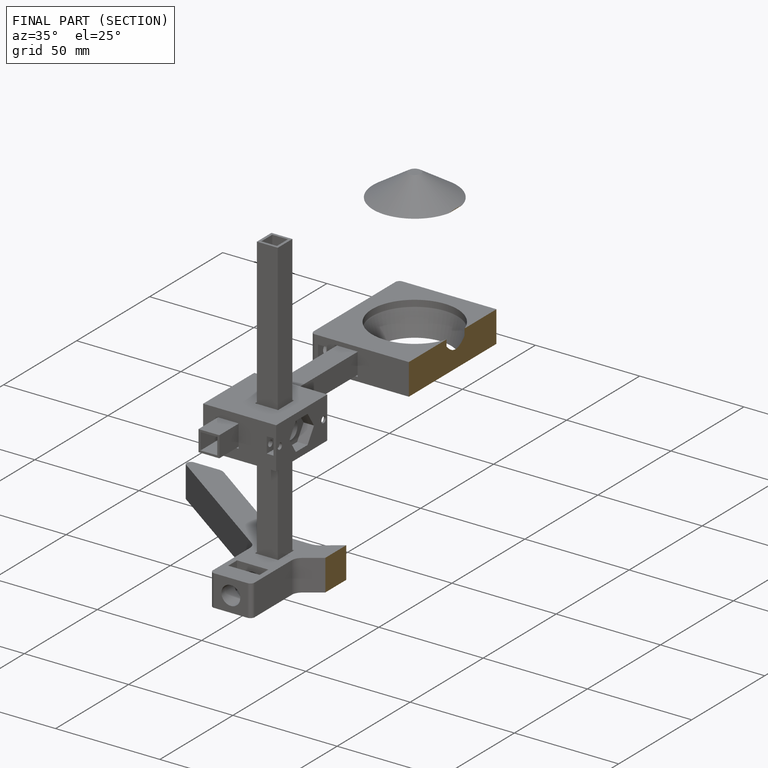
[diagram: finished part — half-section view (interior)]
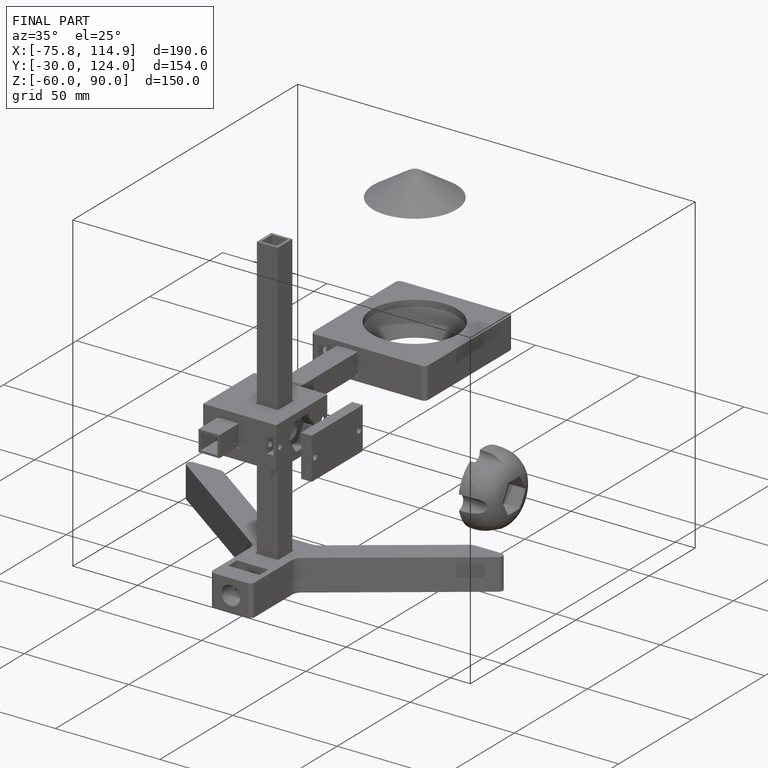
[diagram: finished part — iso view with bounding-box wireframe]
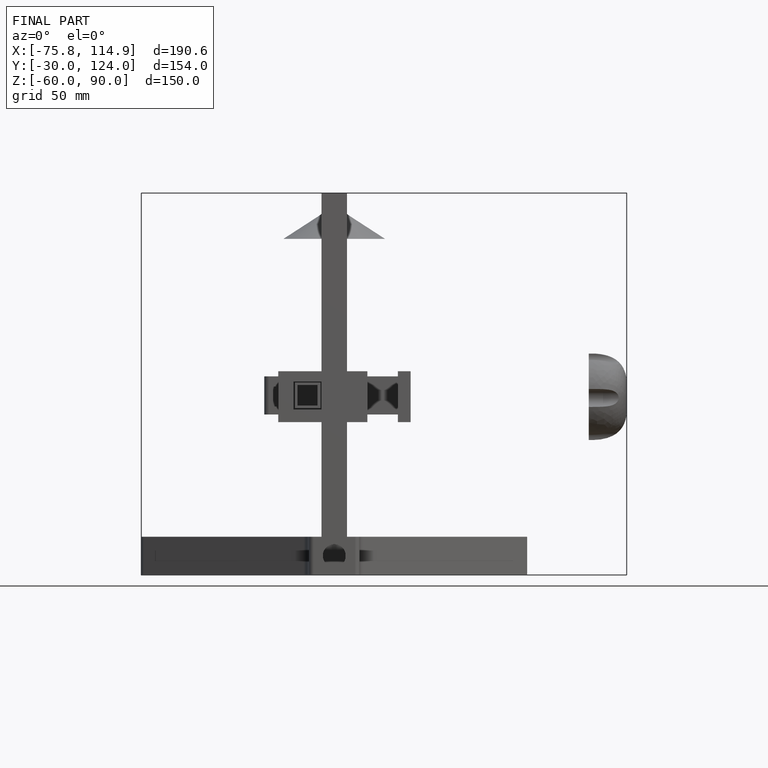
[diagram: finished part — front view with bounding-box wireframe]
